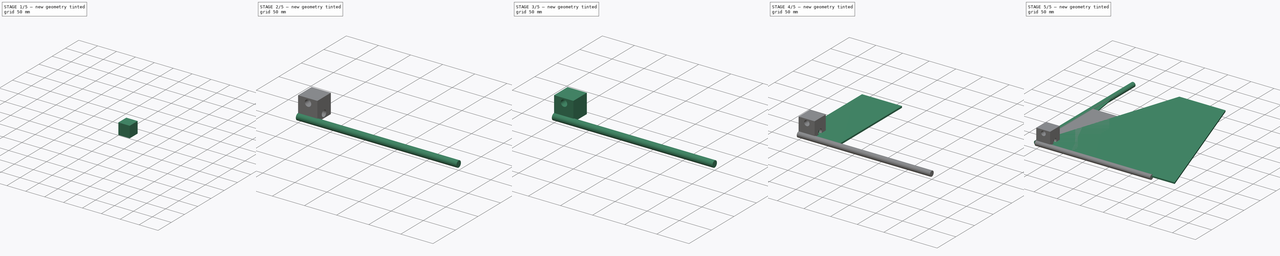
[diagram: build sequence overview — one tinted view per stage of 5, left to right]
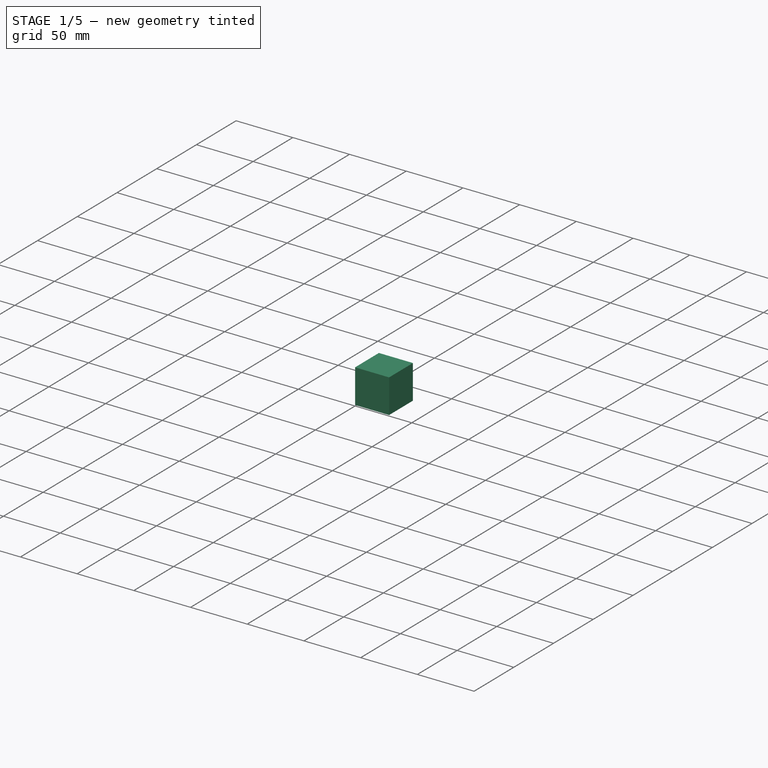
[diagram: stage 1 of 5 — iso view after this stage's code; geometry added in this stage tinted green]
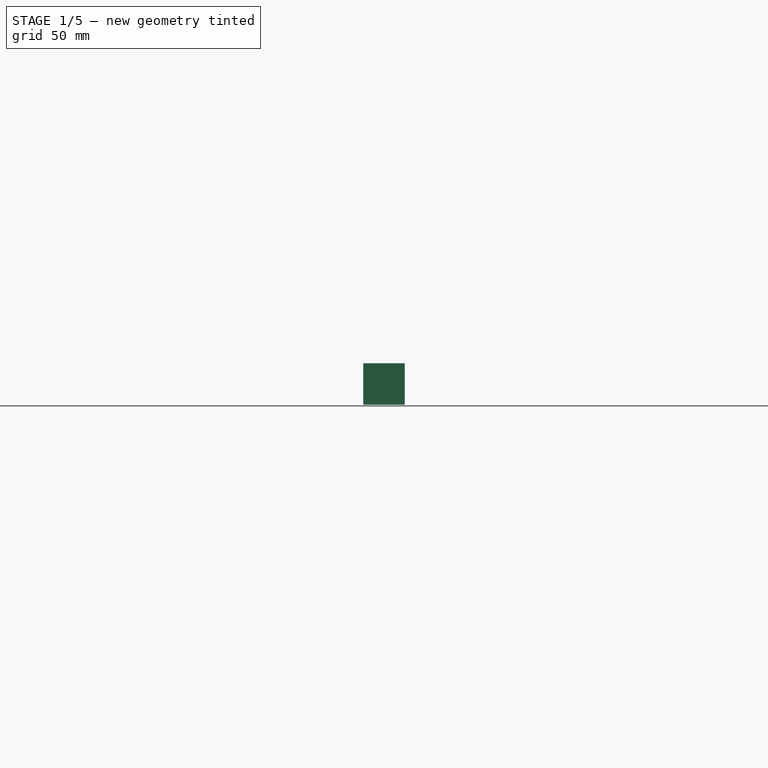
[diagram: stage 1 of 5 — front view after this stage's code; geometry added in this stage tinted green]
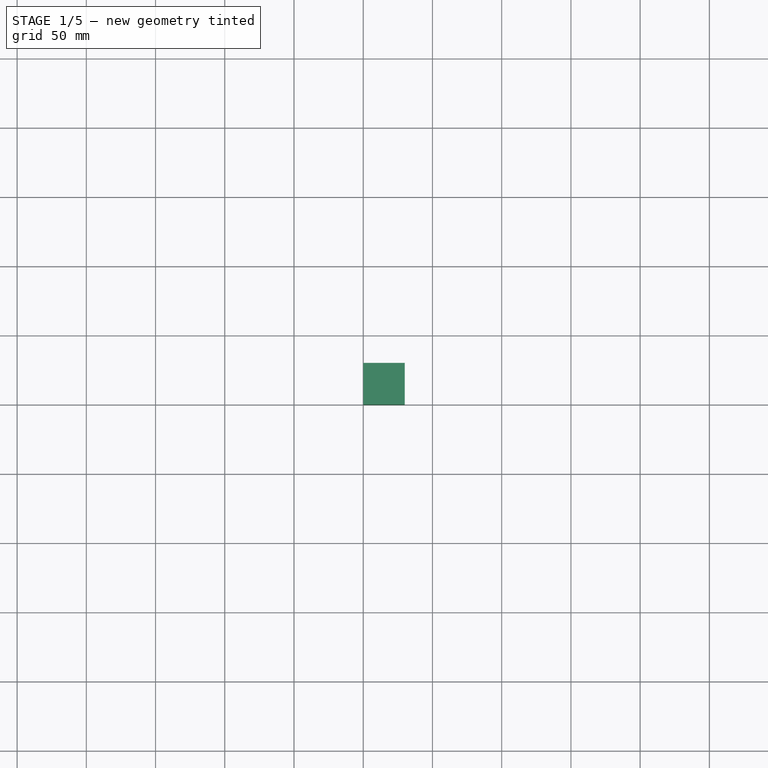
[diagram: stage 1 of 5 — top view after this stage's code; geometry added in this stage tinted green]
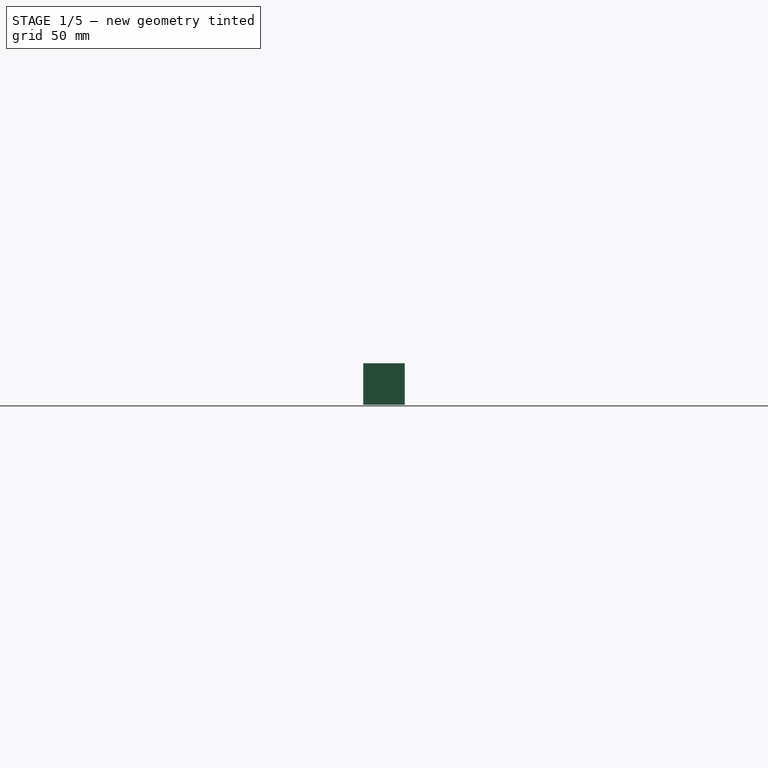
[diagram: stage 1 of 5 — right view after this stage's code; geometry added in this stage tinted green]
FCSTD DOCUMENT  (FreeCAD 0.18R4 (GitTag))
Label: Точилка
License: All rights reserved
LicenseURL: http://en.wikipedia.org/wiki/All_rights_reserved
objects: Sketcher::SketchObject×18, PartDesign::Body×12, PartDesign::Pad×8, PartDesign::Pocket×6, PartDesign::Revolution×4
note: 66 computed .brp shape members not serialized (recipe doc carries the construction recipe); baked Part::Feature solids carry a one-line shape summary decoded from their .brp

FEATURE [PartDesign::Body] Body016  label="Hinge Sliding Rod002"
  Group = -> [Sketch020,Revolution003]
  Origin = -> Origin016
  Placement = pos=(108,-102,227) rot=(0,1,0;1.5708rad)
  Tip = -> Revolution003
FEATURE [Sketcher::SketchObject] Sketch023
  MapMode = 5
  Support = -> [XY_Plane017]
  sketch-geometry (4):
    g0: LineSegment StartX=0 StartY=0 StartZ=0 EndX=30 EndY=0 EndZ=0
    g1: LineSegment StartX=30 StartY=0 StartZ=0 EndX=30 EndY=30 EndZ=0
    g2: LineSegment StartX=30 StartY=30 StartZ=0 EndX=0 EndY=30 EndZ=0
    g3: LineSegment StartX=0 StartY=30 StartZ=0 EndX=0 EndY=0 EndZ=0
  constraints (11):
    c: Coincident(g0,g1)
    c: Coincident(g1,g2)
    c: Coincident(g2,g3)
    c: Coincident(g3,g0)
    c: Horizontal(g0)
    c: Horizontal(g2)
    c: Vertical(g1)
    c: Vertical(g3)
    c: Equal(g0,g1)
    c: Coincident(g0,g-1)
    c: DistanceY(g3,g3) = 30
FEATURE [PartDesign::Pad] Pad011
  Length = 30
  Length2 = 100
  Profile = -> Sketch023
  Type = 0
FEATURE [PartDesign::Body] Body017  label="Hinge001"
  Group = -> [Sketch023,Pad011,Sketch022,Pocket003,Sketch021,Pocket002]
  Origin = -> Origin017
  Placement = pos=(93,-79,21) rot=(1,0,0;1.5708rad)
  Tip = -> Pocket002
FEATURE [Sketcher::SketchObject] Sketch026
  MapMode = 5
  Support = -> [XY_Plane018]
  sketch-geometry (4):
    g0: LineSegment StartX=0 StartY=0 StartZ=0 EndX=30 EndY=0 EndZ=0
    g1: LineSegment StartX=30 StartY=0 StartZ=0 EndX=30 EndY=30 EndZ=0
    g2: LineSegment StartX=30 StartY=30 StartZ=0 EndX=0 EndY=30 EndZ=0
    g3: LineSegment StartX=0 StartY=30 StartZ=0 EndX=0 EndY=0 EndZ=0
  constraints (11):
    c: Coincident(g0,g1)
    c: Coincident(g1,g2)
    c: Coincident(g2,g3)
    c: Coincident(g3,g0)
    c: Horizontal(g0)
    c: Horizontal(g2)
    c: Vertical(g1)
    c: Vertical(g3)
    c: Equal(g0,g1)
    c: Coincident(g0,g-1)
    c: DistanceY(g3,g3) = 30
FEATURE [PartDesign::Pad] Pad012
  Length = 30
  Length2 = 100
  Profile = -> Sketch026
  Type = 0
FEATURE [Sketcher::SketchObject] Sketch025
  ExternalGeometry = -> [Pad012]
  MapMode = 5
  Placement = pos=(0,0,0) rot=(1,0,0;1.5708rad)
  Support = -> [Pad012]
  sketch-geometry (1):
    g0: Circle CenterX=15.4305 CenterY=22.8388 CenterZ=0 NormalX=0 NormalY=0 NormalZ=1 AngleXU=0 Radius=5
  constraints (3):
    c: Radius(g0) = 5
    c: DistanceX(g0) = 15.4305
    c: DistanceY(g0) = 22.8388
FEATURE [PartDesign::Pocket] Pocket005
  BaseFeature = -> Pad012
  Length = 5
  Length2 = 100
  Profile = -> Sketch025
  Type = 1
FEATURE [Sketcher::SketchObject] Sketch024
  MapMode = 5
  Placement = pos=(0,0,0) rot=(0.57735,-0.57735,-0.57735;2.0944rad)
  Support = -> [Pocket005]
  sketch-geometry (1):
    g0: Circle CenterX=-14.9011 CenterY=6.68435 CenterZ=0 NormalX=0 NormalY=0 NormalZ=1 AngleXU=0 Radius=5
  constraints (3):
    c: Radius(g0) = 5
    c: DistanceX(g0) = -14.9011
    c: DistanceY(g0) = 6.68435
FEATURE [PartDesign::Pocket] Pocket004
  BaseFeature = -> Pocket005
  Length = 5
  Length2 = 100
  Profile = -> Sketch024
  Type = 1
FEATURE [PartDesign::Body] Body018  label="Hinge002"
  Group = -> [Sketch026,Pad012,Sketch025,Pocket005,Sketch024,Pocket004]
  Origin = -> Origin018
  Placement = pos=(-133,-79,21) rot=(1,0,0;1.5708rad)
  Tip = -> Pocket004
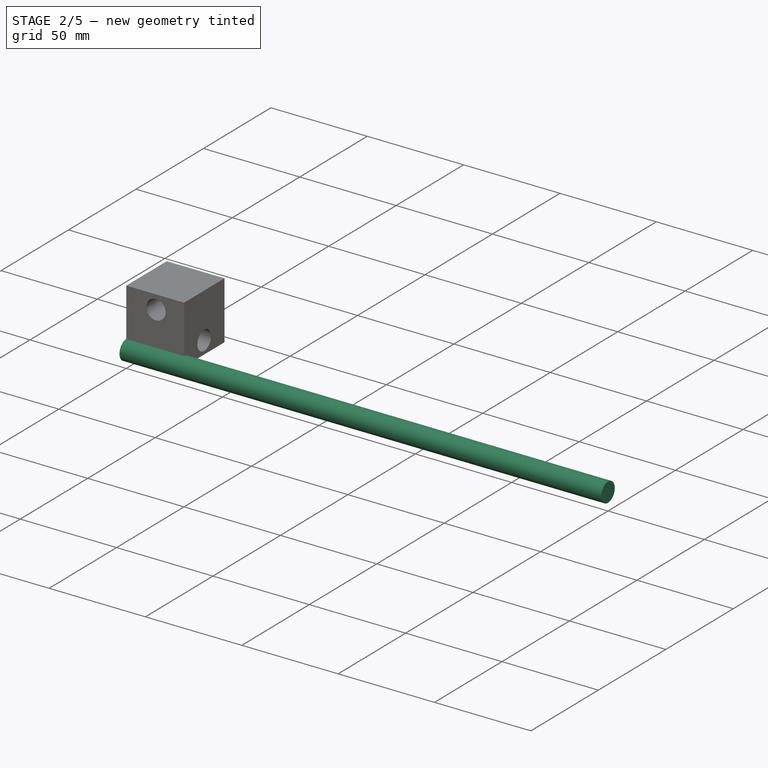
[diagram: stage 2 of 5 — iso view after this stage's code; geometry added in this stage tinted green]
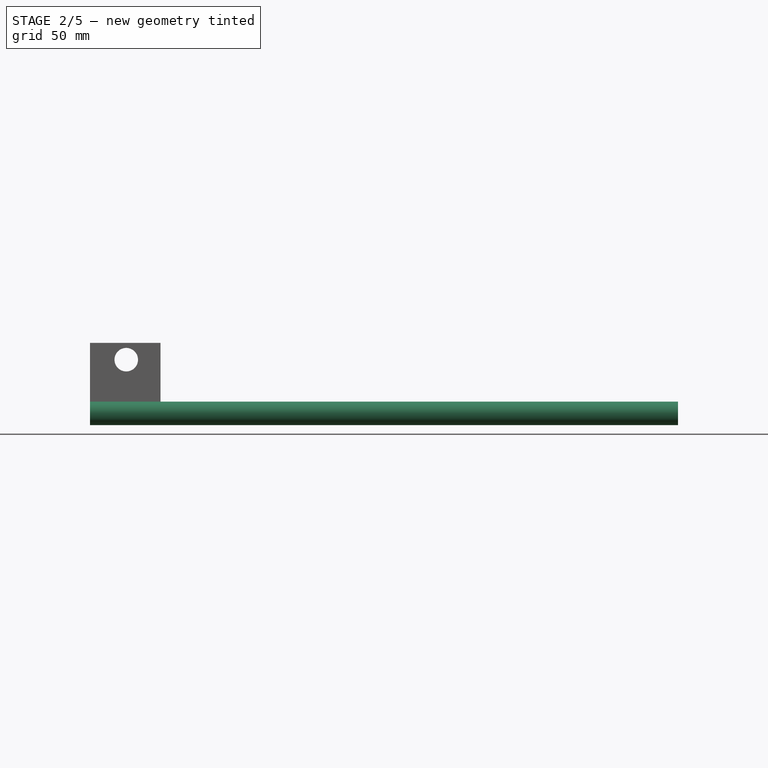
[diagram: stage 2 of 5 — front view after this stage's code; geometry added in this stage tinted green]
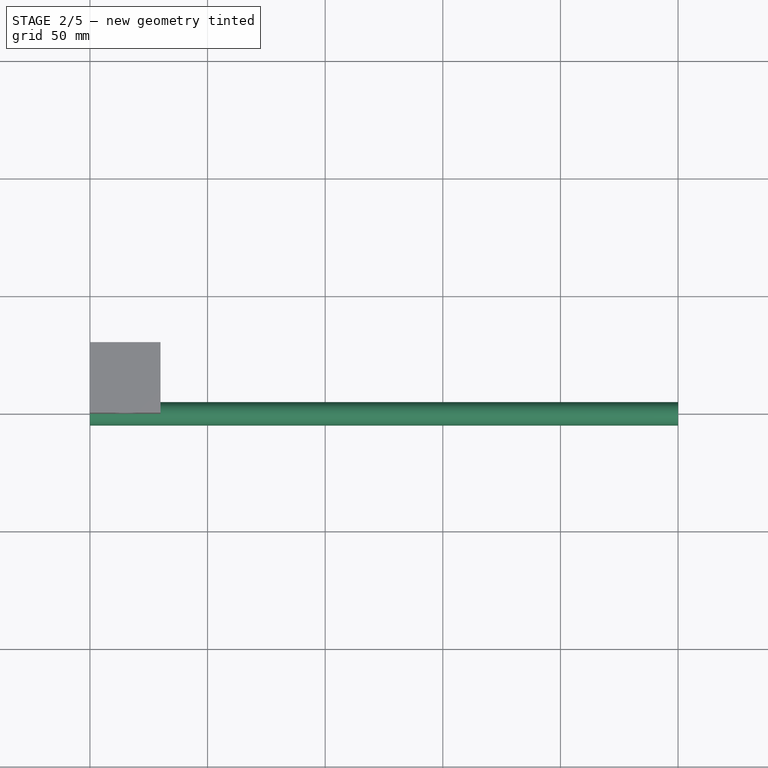
[diagram: stage 2 of 5 — top view after this stage's code; geometry added in this stage tinted green]
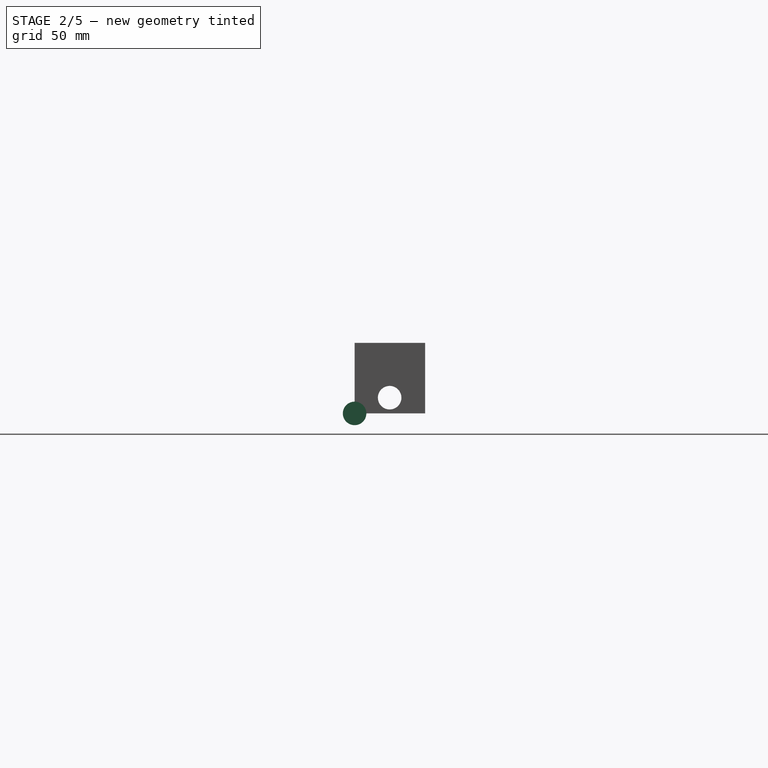
[diagram: stage 2 of 5 — right view after this stage's code; geometry added in this stage tinted green]
FEATURE [PartDesign::Body] Body015  label="Hinge Sliding Rod001"
  Group = -> [Sketch019,Revolution002]
  Origin = -> Origin015
  Placement = pos=(-117,-102,228) rot=(0,1,0;1.5708rad)
  Tip = -> Revolution002
FEATURE [Sketcher::SketchObject] Sketch020
  MapMode = 5
  Support = -> [XY_Plane016]
  sketch-geometry (4):
    g0: LineSegment StartX=0 StartY=0 StartZ=0 EndX=250 EndY=0 EndZ=0
    g1: LineSegment StartX=250 StartY=0 StartZ=0 EndX=250 EndY=5 EndZ=0
    g2: LineSegment StartX=250 StartY=5 StartZ=0 EndX=0 EndY=5 EndZ=0
    g3: LineSegment StartX=0 StartY=5 StartZ=0 EndX=0 EndY=0 EndZ=0
  constraints (11):
    c: Coincident(g0,g1)
    c: Coincident(g1,g2)
    c: Coincident(g2,g3)
    c: Coincident(g3,g0)
    c: Horizontal(g0)
    c: Horizontal(g2)
    c: Vertical(g1)
    c: Vertical(g3)
    c: Coincident(g0,g-1)
    c: DistanceY(g3,g3) = 5
    c: DistanceX(g2,g2) = 250
FEATURE [PartDesign::Revolution] Revolution003
  Angle = 360
  Axis = (1,0,0)
  Base = (0,0,0)
  Profile = -> Sketch020
  ReferenceAxis = -> Sketch020 [H_Axis]
FEATURE [Sketcher::SketchObject] Sketch022
  ExternalGeometry = -> [Pad011]
  MapMode = 5
  Placement = pos=(0,0,0) rot=(1,0,0;1.5708rad)
  Support = -> [Pad011]
  sketch-geometry (1):
    g0: Circle CenterX=15.4305 CenterY=22.8388 CenterZ=0 NormalX=0 NormalY=0 NormalZ=1 AngleXU=0 Radius=5
  constraints (3):
    c: Radius(g0) = 5
    c: DistanceX(g0) = 15.4305
    c: DistanceY(g0) = 22.8388
FEATURE [PartDesign::Pocket] Pocket003
  BaseFeature = -> Pad011
  Length = 5
  Length2 = 100
  Profile = -> Sketch022
  Type = 1
FEATURE [Sketcher::SketchObject] Sketch021
  MapMode = 5
  Placement = pos=(0,0,0) rot=(0.57735,-0.57735,-0.57735;2.0944rad)
  Support = -> [Pocket003]
  sketch-geometry (1):
    g0: Circle CenterX=-14.9011 CenterY=6.68435 CenterZ=0 NormalX=0 NormalY=0 NormalZ=1 AngleXU=0 Radius=5
  constraints (3):
    c: Radius(g0) = 5
    c: DistanceX(g0) = -14.9011
    c: DistanceY(g0) = 6.68435
FEATURE [PartDesign::Pocket] Pocket002
  BaseFeature = -> Pocket003
  Length = 5
  Length2 = 100
  Profile = -> Sketch021
  Type = 1
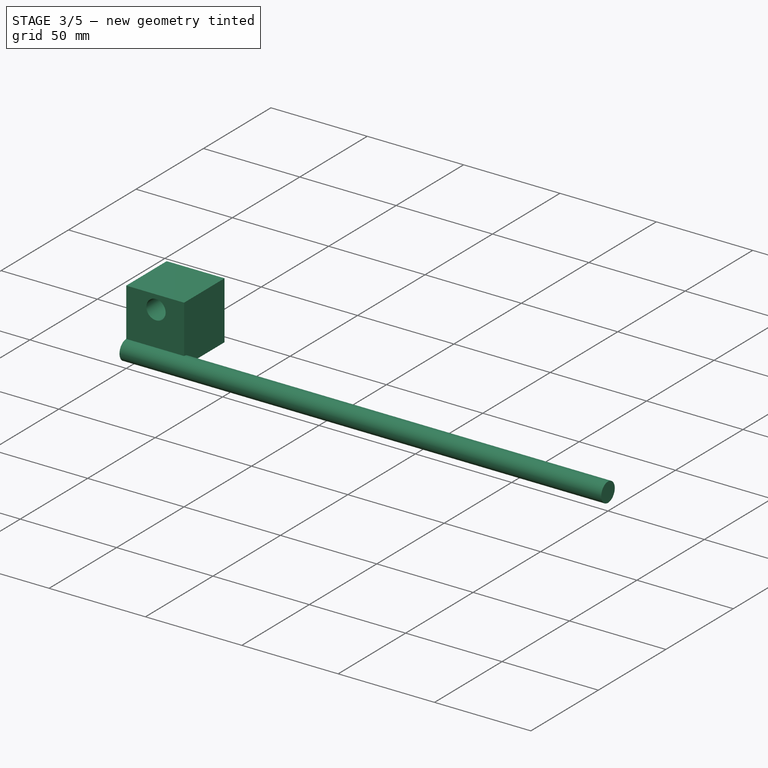
[diagram: stage 3 of 5 — iso view after this stage's code; geometry added in this stage tinted green]
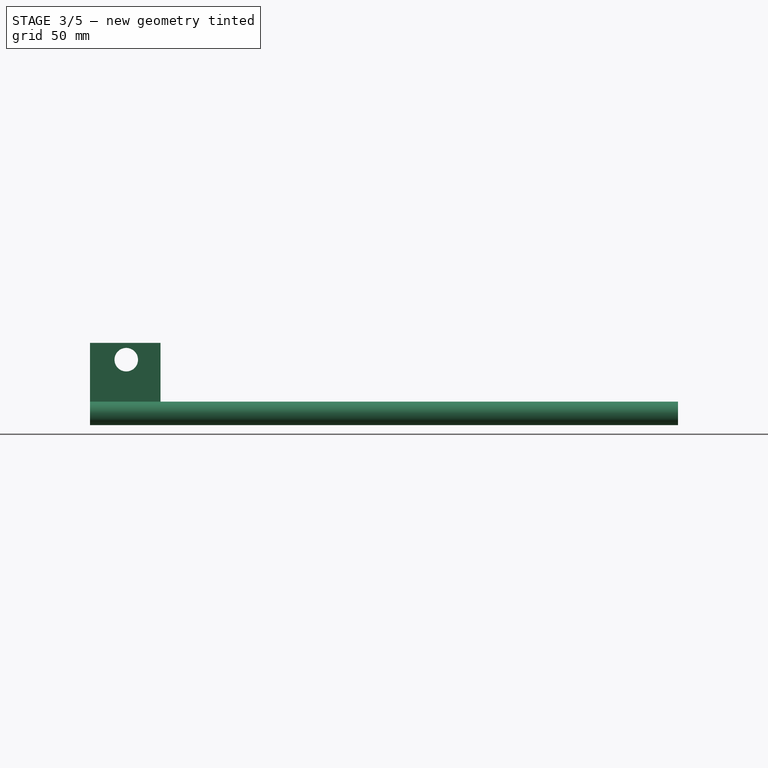
[diagram: stage 3 of 5 — front view after this stage's code; geometry added in this stage tinted green]
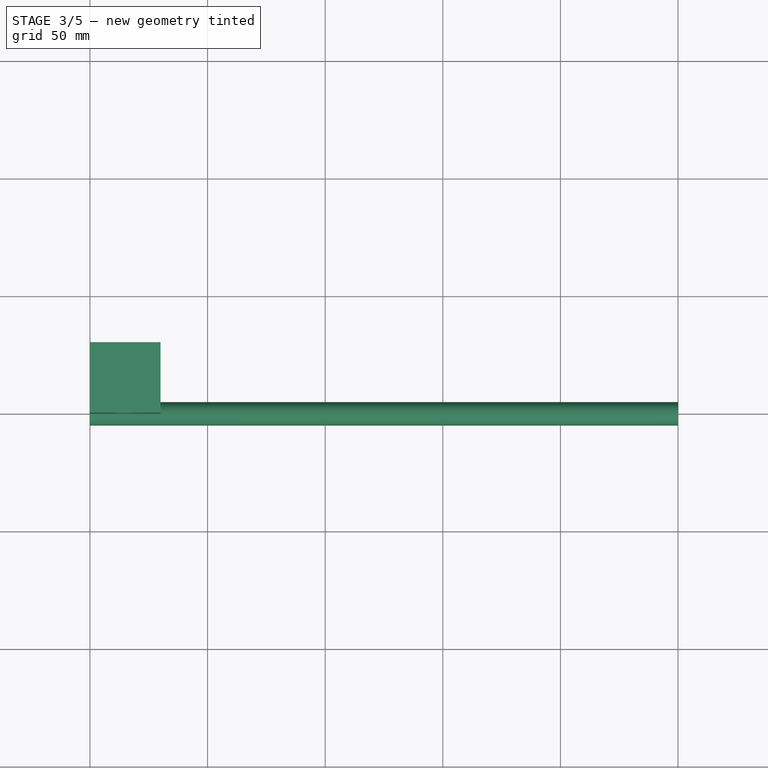
[diagram: stage 3 of 5 — top view after this stage's code; geometry added in this stage tinted green]
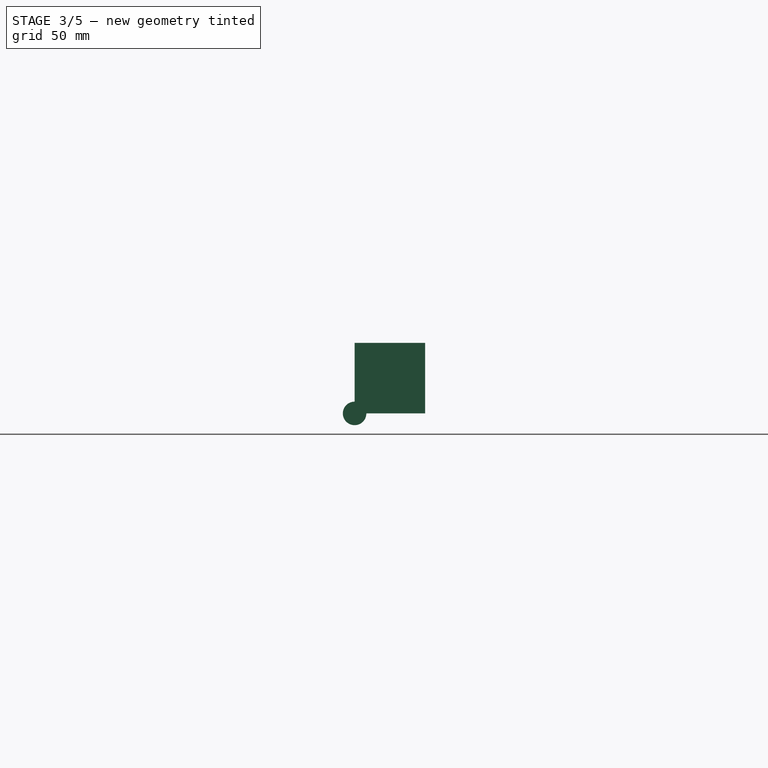
[diagram: stage 3 of 5 — right view after this stage's code; geometry added in this stage tinted green]
FEATURE [PartDesign::Body] Body012  label="Khife Holder Plate"
  Group = -> [Sketch014,Pad009]
  Origin = -> Origin012
  Placement = pos=(-148.781,-126.659,-22.2963) rot=(0,0,1;0rad)
  Tip = -> Pad009
FEATURE [PartDesign::Body] Body  label="Sharpening Plate 1"
  Group = -> [Sketch,Pad]
  Origin = -> Origin
  Placement = pos=(-37,22,36) rot=(0,0,1;0rad)
  Tip = -> Pad
FEATURE [PartDesign::Body] Body011  label="Sharpening Plate Holder 1"
  Group = -> [Sketch013,Pad008]
  Origin = -> Origin011
  Placement = pos=(-37,22,39) rot=(0,0,1;0rad)
  Tip = -> Pad008
FEATURE [PartDesign::Body] Body004  label="Holder To Rod Connector 1"
  Group = -> [Sketch004,Pad004]
  Origin = -> Origin004
  Placement = pos=(-12,96,42) rot=(1,0,0;1.5708rad)
  Tip = -> Pad004
FEATURE [Sketcher::SketchObject] Sketch015
  MapMode = 5
  Support = -> [XY_Plane013]
  sketch-geometry (4):
    g0: LineSegment StartX=0 StartY=0 StartZ=0 EndX=30 EndY=0 EndZ=0
    g1: LineSegment StartX=30 StartY=0 StartZ=0 EndX=30 EndY=30 EndZ=0
    g2: LineSegment StartX=30 StartY=30 StartZ=0 EndX=0 EndY=30 EndZ=0
    g3: LineSegment StartX=0 StartY=30 StartZ=0 EndX=0 EndY=0 EndZ=0
  constraints (11):
    c: Coincident(g0,g1)
    c: Coincident(g1,g2)
    c: Coincident(g2,g3)
    c: Coincident(g3,g0)
    c: Horizontal(g0)
    c: Horizontal(g2)
    c: Vertical(g1)
    c: Vertical(g3)
    c: Equal(g0,g1)
    c: Coincident(g0,g-1)
    c: DistanceY(g3,g3) = 30
FEATURE [PartDesign::Pad] Pad010
  Length = 30
  Length2 = 100
  Profile = -> Sketch015
  Type = 0
FEATURE [Sketcher::SketchObject] Sketch016
  ExternalGeometry = -> [Pad010]
  MapMode = 5
  Placement = pos=(0,0,0) rot=(1,0,0;1.5708rad)
  Support = -> [Pad010]
  sketch-geometry (1):
    g0: Circle CenterX=15.4305 CenterY=22.8388 CenterZ=0 NormalX=0 NormalY=0 NormalZ=1 AngleXU=0 Radius=5
  constraints (3):
    c: Radius(g0) = 5
    c: DistanceX(g0) = 15.4305
    c: DistanceY(g0) = 22.8388
FEATURE [PartDesign::Pocket] Pocket
  BaseFeature = -> Pad010
  Length = 5
  Length2 = 100
  Profile = -> Sketch016
  Type = 1
FEATURE [PartDesign::Body] Body013  label="Hinge"
  Group = -> [Sketch015,Pad010,Sketch016,Pocket,Sketch017,Pocket001]
  Origin = -> Origin013
  Placement = pos=(-13,-101,29) rot=(0,0,1;0rad)
  Tip = -> Pocket001
FEATURE [Sketcher::SketchObject] Sketch018
  MapMode = 5
  Support = -> [XY_Plane014]
  sketch-geometry (4):
    g0: LineSegment StartX=0 StartY=0 StartZ=0 EndX=250 EndY=0 EndZ=0
    g1: LineSegment StartX=250 StartY=0 StartZ=0 EndX=250 EndY=5 EndZ=0
    g2: LineSegment StartX=250 StartY=5 StartZ=0 EndX=0 EndY=5 EndZ=0
    g3: LineSegment StartX=0 StartY=5 StartZ=0 EndX=0 EndY=0 EndZ=0
  constraints (11):
    c: Coincident(g0,g1)
    c: Coincident(g1,g2)
    c: Coincident(g2,g3)
    c: Coincident(g3,g0)
    c: Horizontal(g0)
    c: Horizontal(g2)
    c: Vertical(g1)
    c: Vertical(g3)
    c: Coincident(g0,g-1)
    c: DistanceY(g3,g3) = 5
    c: DistanceX(g2,g2) = 250
FEATURE [PartDesign::Revolution] Revolution001
  Angle = 360
  Axis = (1,0,0)
  Base = (0,0,0)
  Profile = -> Sketch018
  ReferenceAxis = -> Sketch018 [H_Axis]
FEATURE [PartDesign::Body] Body014  label="Hinge Sliding Rod"
  Group = -> [Sketch018,Revolution001]
  Origin = -> Origin014
  Placement = pos=(-127,-86,36) rot=(0,0,1;0rad)
  Tip = -> Revolution001
FEATURE [Sketcher::SketchObject] Sketch019
  MapMode = 5
  Support = -> [XY_Plane015]
  sketch-geometry (4):
    g0: LineSegment StartX=0 StartY=0 StartZ=0 EndX=250 EndY=0 EndZ=0
    g1: LineSegment StartX=250 StartY=0 StartZ=0 EndX=250 EndY=5 EndZ=0
    g2: LineSegment StartX=250 StartY=5 StartZ=0 EndX=0 EndY=5 EndZ=0
    g3: LineSegment StartX=0 StartY=5 StartZ=0 EndX=0 EndY=0 EndZ=0
  constraints (11):
    c: Coincident(g0,g1)
    c: Coincident(g1,g2)
    c: Coincident(g2,g3)
    c: Coincident(g3,g0)
    c: Horizontal(g0)
    c: Horizontal(g2)
    c: Vertical(g1)
    c: Vertical(g3)
    c: Coincident(g0,g-1)
    c: DistanceY(g3,g3) = 5
    c: DistanceX(g2,g2) = 250
FEATURE [PartDesign::Revolution] Revolution002
  Angle = 360
  Axis = (1,0,0)
  Base = (0,0,0)
  Profile = -> Sketch019
  ReferenceAxis = -> Sketch019 [H_Axis]
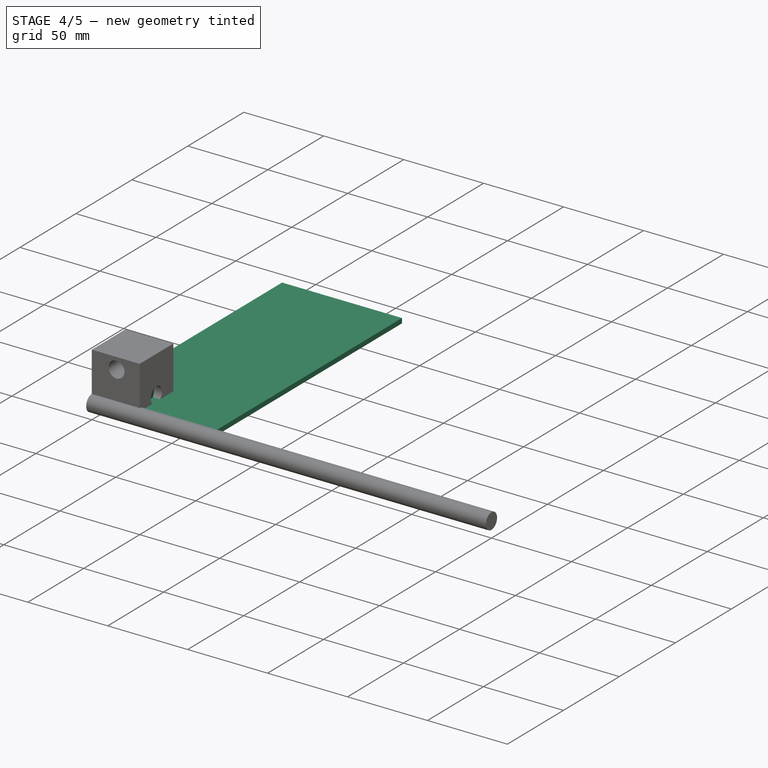
[diagram: stage 4 of 5 — iso view after this stage's code; geometry added in this stage tinted green]
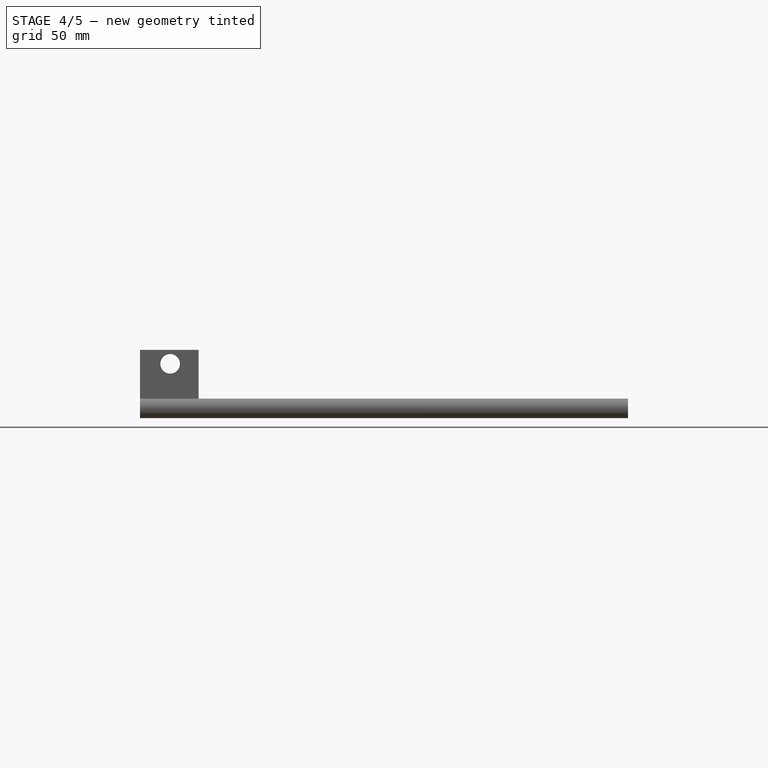
[diagram: stage 4 of 5 — front view after this stage's code; geometry added in this stage tinted green]
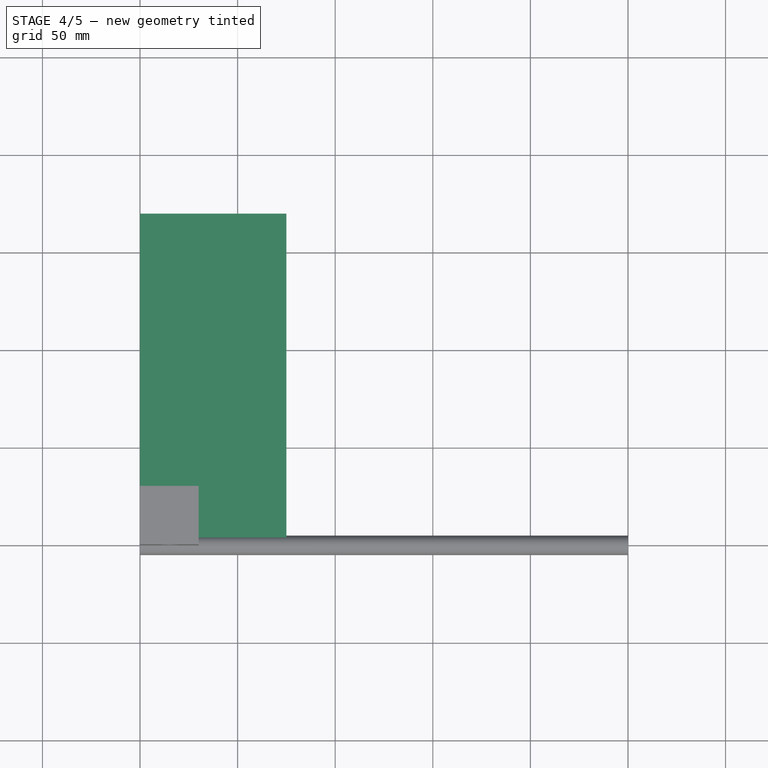
[diagram: stage 4 of 5 — top view after this stage's code; geometry added in this stage tinted green]
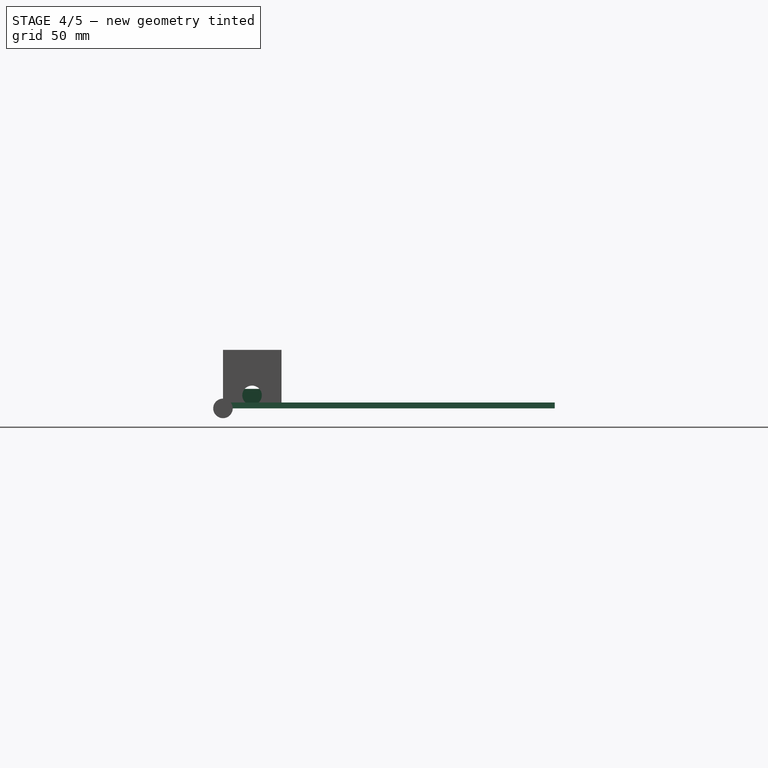
[diagram: stage 4 of 5 — right view after this stage's code; geometry added in this stage tinted green]
FEATURE [Sketcher::SketchObject] Sketch004
  MapMode = 5
  Support = -> [XY_Plane004]
  sketch-geometry (5):
    g0: LineSegment StartX=0 StartY=0 StartZ=0 EndX=30 EndY=0 EndZ=0
    g1: LineSegment StartX=30 StartY=0 StartZ=0 EndX=25 EndY=20 EndZ=0
    g2: LineSegment StartX=25 StartY=20 StartZ=0 EndX=5 EndY=20 EndZ=0
    g3: LineSegment StartX=5 StartY=20 StartZ=0 EndX=0 EndY=0 EndZ=0
    g4: Circle CenterX=14.9987 CenterY=10.0772 CenterZ=0 NormalX=0 NormalY=0 NormalZ=1 AngleXU=0 Radius=5
  constraints (14):
    c: Coincident(g0,g1)
    c: Coincident(g1,g2)
    c: Coincident(g2,g3)
    c: Coincident(g3,g0)
    c: Horizontal(g0)
    c: Horizontal(g2)
    c: Coincident(g0,g-1)
    c: DistanceX(g0,g0) = 30
    c: DistanceX(g2,g2) = 20
    c: DistanceY(g3,g3) = 20
    c: Equal(g3,g1)
    c: Radius(g4) = 5
    c: DistanceX(g4) = 14.9987
    c: DistanceY(g4) = 10.0772
FEATURE [PartDesign::Pad] Pad004
  Length = 10
  Length2 = 100
  Profile = -> Sketch004
  Type = 0
FEATURE [PartDesign::Body] Body009  label="Knife"
  Group = -> [Sketch010,Pad006]
  Origin = -> Origin009
  Placement = pos=(-100.788,165.182,-14) rot=(-0.707107,-0.707107,0;3.14159rad)
  Tip = -> Pad006
FEATURE [Sketcher::SketchObject] Sketch013
  MapMode = 5
  Support = -> [XY_Plane011]
  sketch-geometry (4):
    g0: LineSegment StartX=0 StartY=170 StartZ=0 EndX=75 EndY=170 EndZ=0
    g1: LineSegment StartX=75 StartY=170 StartZ=0 EndX=75 EndY=0 EndZ=0
    g2: LineSegment StartX=75 StartY=0 StartZ=0 EndX=0 EndY=0 EndZ=0
    g3: LineSegment StartX=0 StartY=0 StartZ=0 EndX=0 EndY=170 EndZ=0
  constraints (11):
    c: Coincident(g0,g1)
    c: Coincident(g1,g2)
    c: Coincident(g2,g3)
    c: Coincident(g3,g0)
    c: Horizontal(g0)
    c: Horizontal(g2)
    c: Vertical(g1)
    c: Vertical(g3)
    c: Coincident(g2,g-1)
    c: DistanceX(g2,g2) = 75
    c: DistanceY(g3,g3) = 170
FEATURE [PartDesign::Pad] Pad008
  Length = 3
  Length2 = 100
  Profile = -> Sketch013
  Type = 0
FEATURE [Sketcher::SketchObject] Sketch017
  MapMode = 5
  Placement = pos=(0,0,0) rot=(0.57735,-0.57735,-0.57735;2.0944rad)
  Support = -> [Pocket]
  sketch-geometry (1):
    g0: Circle CenterX=-14.9011 CenterY=6.68435 CenterZ=0 NormalX=0 NormalY=0 NormalZ=1 AngleXU=0 Radius=5
  constraints (3):
    c: Radius(g0) = 5
    c: DistanceX(g0) = -14.9011
    c: DistanceY(g0) = 6.68435
FEATURE [PartDesign::Pocket] Pocket001
  BaseFeature = -> Pocket
  Length = 5
  Length2 = 100
  Profile = -> Sketch017
  Type = 1
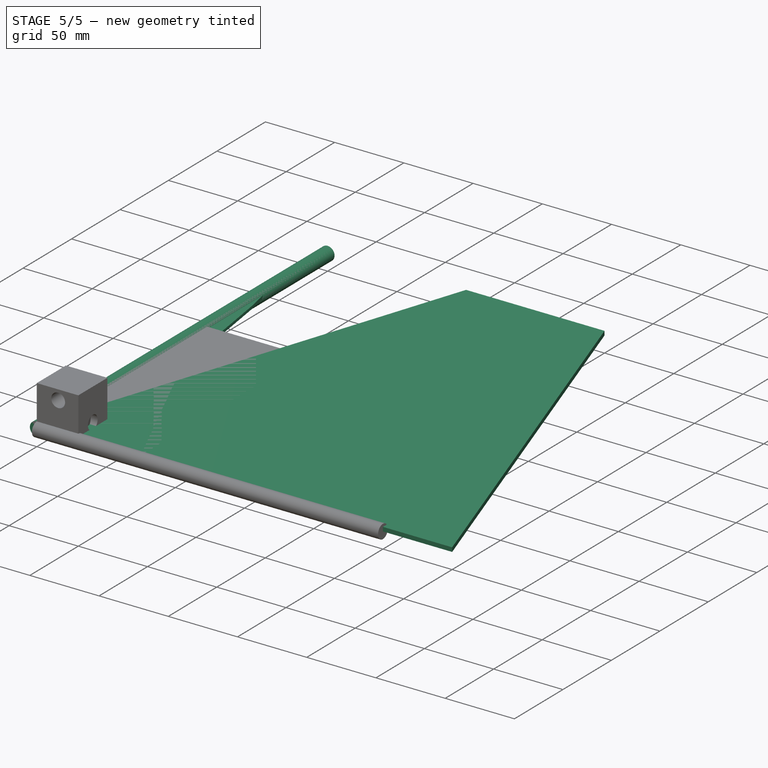
[diagram: stage 5 of 5 — iso view after this stage's code; geometry added in this stage tinted green]
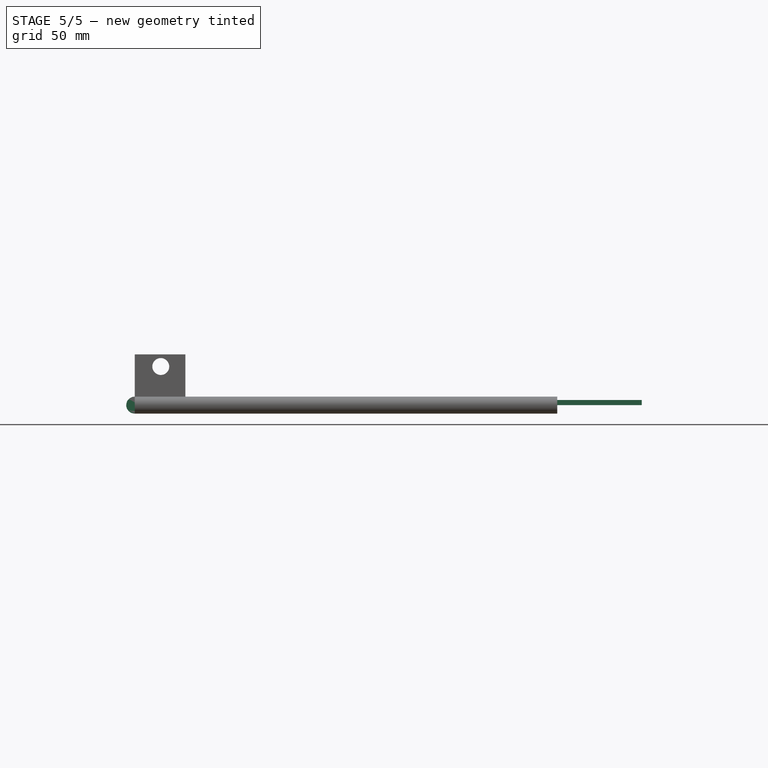
[diagram: stage 5 of 5 — front view after this stage's code; geometry added in this stage tinted green]
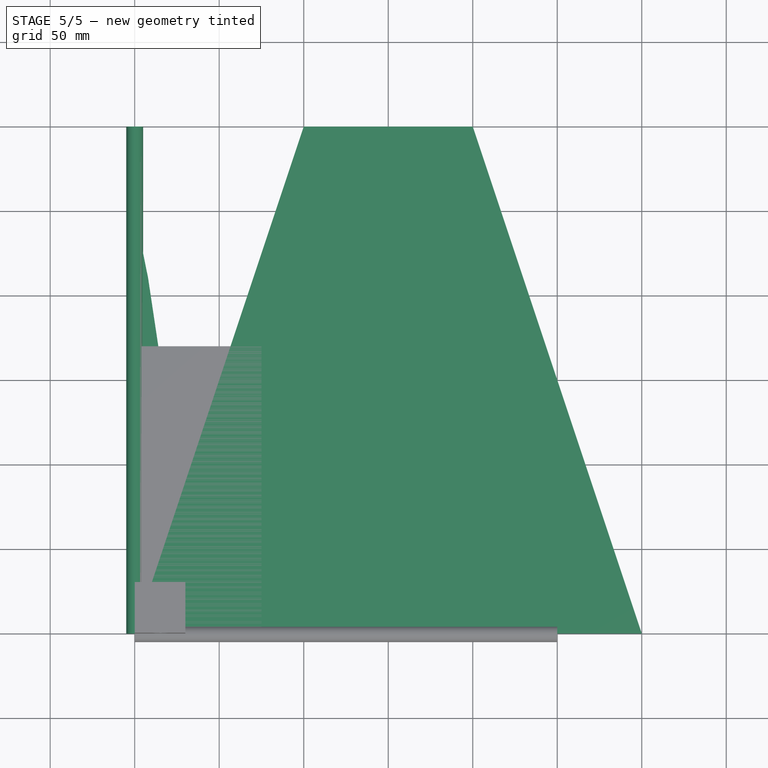
[diagram: stage 5 of 5 — top view after this stage's code; geometry added in this stage tinted green]
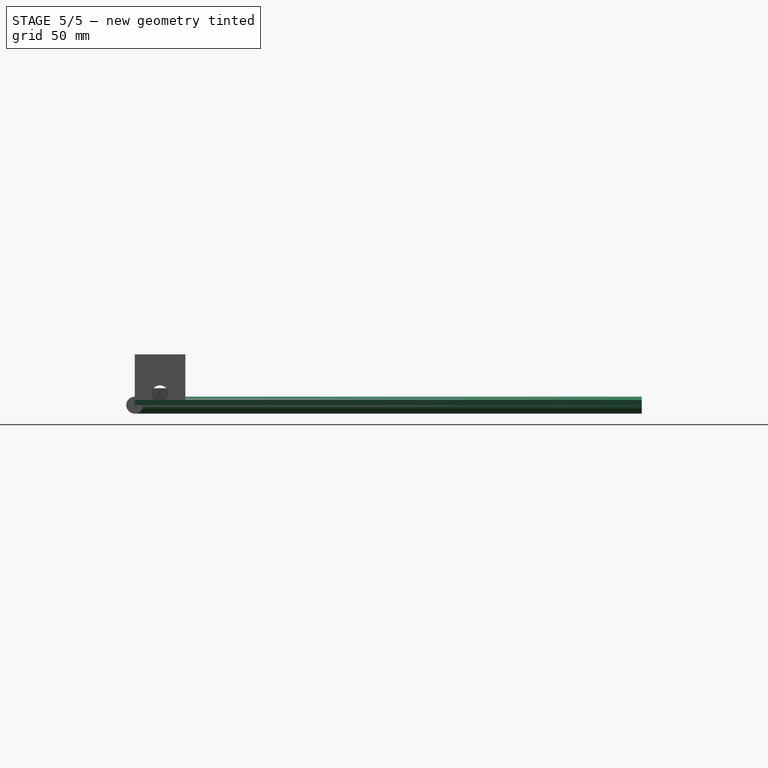
[diagram: stage 5 of 5 — right view after this stage's code; geometry added in this stage tinted green]
FEATURE [Sketcher::SketchObject] Sketch
  MapMode = 5
  Support = -> [XY_Plane]
  sketch-geometry (4):
    g0: LineSegment StartX=0 StartY=170 StartZ=0 EndX=75 EndY=170 EndZ=0
    g1: LineSegment StartX=75 StartY=170 StartZ=0 EndX=75 EndY=0 EndZ=0
    g2: LineSegment StartX=75 StartY=0 StartZ=0 EndX=0 EndY=0 EndZ=0
    g3: LineSegment StartX=0 StartY=0 StartZ=0 EndX=0 EndY=170 EndZ=0
  constraints (11):
    c: Coincident(g0,g1)
    c: Coincident(g1,g2)
    c: Coincident(g2,g3)
    c: Coincident(g3,g0)
    c: Horizontal(g0)
    c: Horizontal(g2)
    c: Vertical(g1)
    c: Vertical(g3)
    c: Coincident(g2,g-1)
    c: DistanceX(g2,g2) = 75
    c: DistanceY(g3,g3) = 170
FEATURE [PartDesign::Pad] Pad
  Length = 3
  Length2 = 100
  Profile = -> Sketch
  Type = 0
FEATURE [Sketcher::SketchObject] Sketch006
  MapMode = 5
  Support = -> [XY_Plane006]
  sketch-geometry (4):
    g0: LineSegment StartX=0 StartY=0 StartZ=0 EndX=5 EndY=0 EndZ=0
    g1: LineSegment StartX=5 StartY=0 StartZ=0 EndX=5 EndY=300 EndZ=0
    g2: LineSegment StartX=5 StartY=300 StartZ=0 EndX=0 EndY=300 EndZ=0
    g3: LineSegment StartX=0 StartY=300 StartZ=0 EndX=0 EndY=0 EndZ=0
  constraints (11):
    c: Coincident(g0,g1)
    c: Coincident(g1,g2)
    c: Coincident(g2,g3)
    c: Coincident(g3,g0)
    c: Horizontal(g0)
    c: Horizontal(g2)
    c: Vertical(g1)
    c: Vertical(g3)
    c: DistanceX(g0,g0) = 5
    c: Coincident(g0,g-1)
    c: DistanceY(g3,g3) = 300
FEATURE [Sketcher::SketchObject] Sketch010
  MapMode = 5
  Support = -> [XY_Plane009]
  sketch-geometry (5):
    g0: LineSegment StartX=0 StartY=0 StartZ=0 EndX=30 EndY=0 EndZ=0
    g1: LineSegment StartX=30 StartY=0 StartZ=0 EndX=30 EndY=50 EndZ=0
    g2: LineSegment StartX=30 StartY=50 StartZ=0 EndX=20 EndY=50 EndZ=0
    g3: LineSegment StartX=0 StartY=250 StartZ=0 EndX=0 EndY=0 EndZ=0
    g4: ArcOfCircle CenterX=-802.125 CenterY=68.7875 CenterZ=0 NormalX=0 NormalY=0 NormalZ=1 AngleXU=0 Radius=822.34 StartAngle=6.26034 EndAngle=6.50537
  constraints (15):
    c: Coincident(g0,g1)
    c: Coincident(g1,g2)
    c: Coincident(g3,g0)
    c: Coincident(g0,g-1)
    c: Vertical(g3)
    c: Horizontal(g0)
    c: Horizontal(g2)
    c: Vertical(g1)
    c: DistanceY(g3,g3) = 250
    c: DistanceY(g1,g1) = 50
    c: DistanceX(g0,g0) = 30
    c: DistanceX(g2,g2) = 10
    c: Coincident(g2,g4)
    c: Coincident(g3,g4)
    c: Radius(g4) = 822.34
FEATURE [PartDesign::Pad] Pad006
  Length = 2
  Length2 = 100
  Profile = -> Sketch010
  Type = 0
FEATURE [PartDesign::Revolution] Revolution
  Angle = 360
  Axis = (0,1,0)
  Base = (0,0,0)
  Profile = -> Sketch006
  ReferenceAxis = -> Sketch006 [V_Axis]
  Reversed = true
FEATURE [PartDesign::Body] Body006  label="Sliding Rod 1"
  Group = -> [Sketch006,Revolution]
  Origin = -> Origin006
  Placement = pos=(3.07028,-102.392,52.0556) rot=(0,0,1;0rad)
  Tip = -> Revolution
FEATURE [Sketcher::SketchObject] Sketch014
  MapMode = 5
  Support = -> [XY_Plane012]
  sketch-geometry (4):
    g0: LineSegment StartX=0 StartY=0 StartZ=0 EndX=300 EndY=0 EndZ=0
    g1: LineSegment StartX=300 StartY=0 StartZ=0 EndX=200 EndY=300 EndZ=0
    g2: LineSegment StartX=200 StartY=300 StartZ=0 EndX=100 EndY=300 EndZ=0
    g3: LineSegment StartX=100 StartY=300 StartZ=0 EndX=0 EndY=0 EndZ=0
  constraints (11):
    c: Coincident(g0,g1)
    c: Coincident(g1,g2)
    c: Coincident(g2,g3)
    c: Coincident(g3,g0)
    c: Horizontal(g0)
    c: Horizontal(g2)
    c: Coincident(g0,g-1)
    c: DistanceY(g3,g3) = 300
    c: DistanceX(g2,g2) = 100
    c: DistanceX(g0,g0) = 300
    c: Equal(g1,g3)
FEATURE [PartDesign::Pad] Pad009
  Length = 3
  Length2 = 100
  Profile = -> Sketch014
  Type = 0
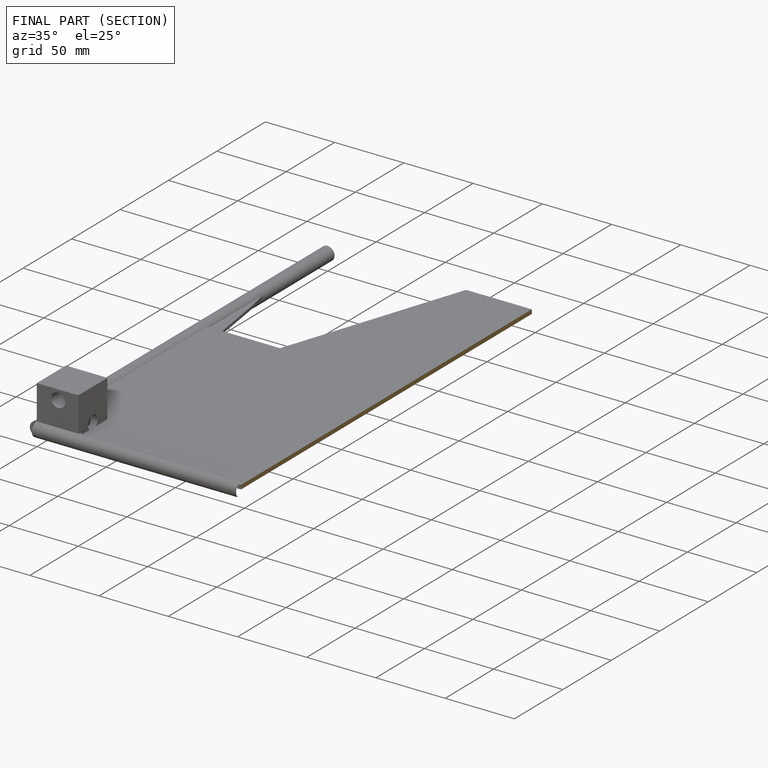
[diagram: finished part — half-section view (interior)]
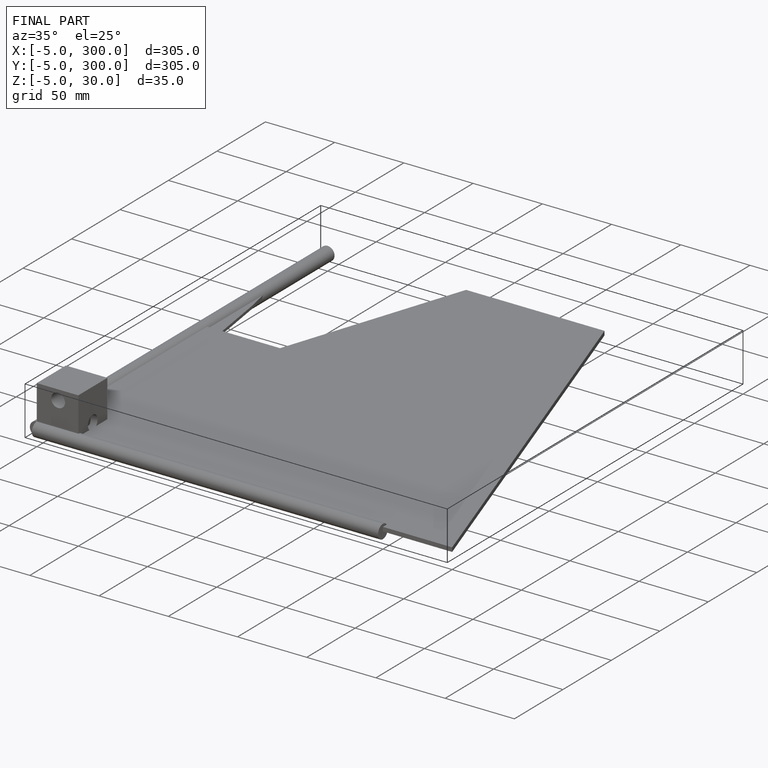
[diagram: finished part — iso view with bounding-box wireframe]
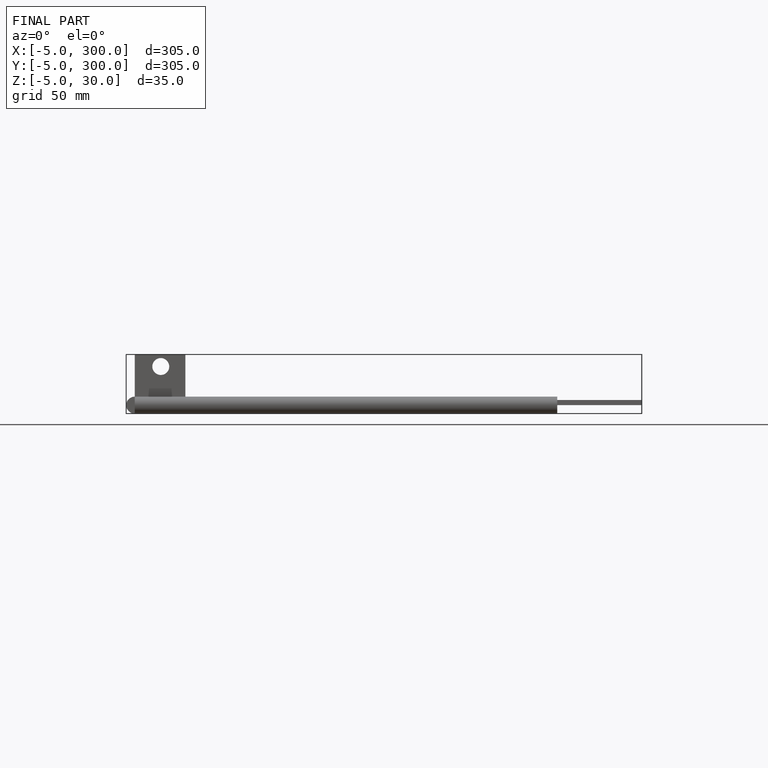
[diagram: finished part — front view with bounding-box wireframe]
